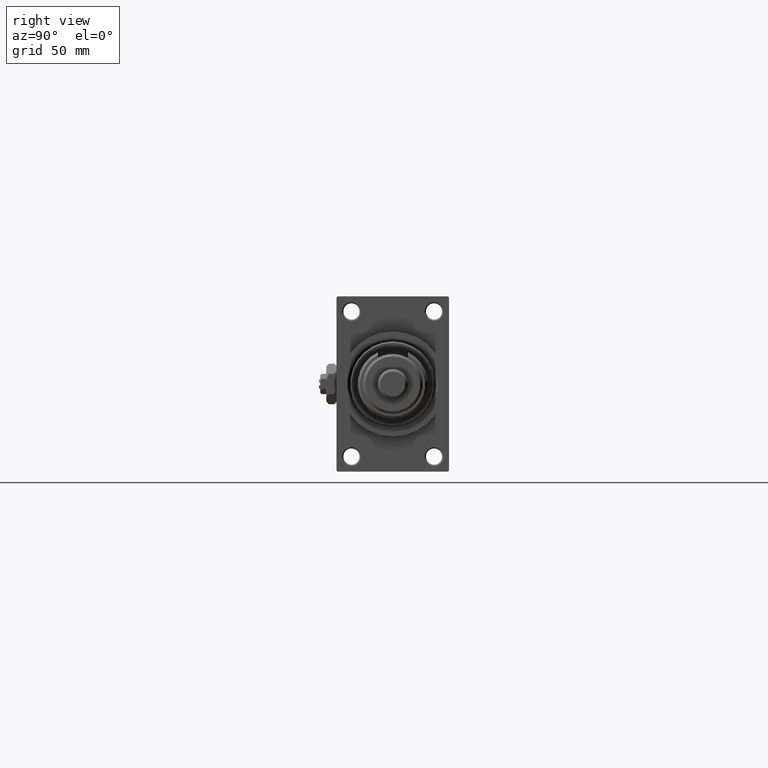
[diagram: clean part render]
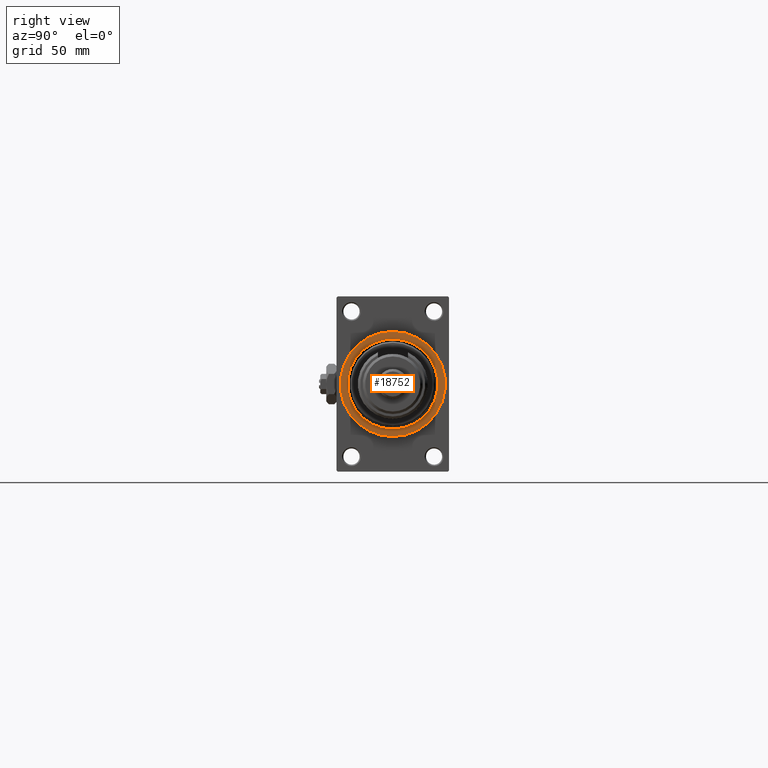
[diagram: same view with one face highlighted and labeled with its STEP entity id]
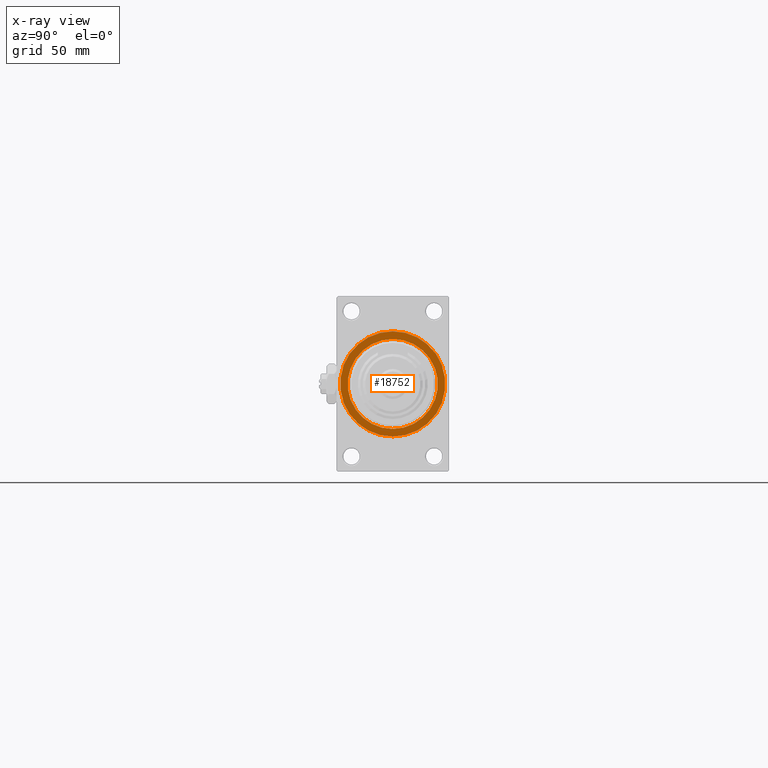
[diagram: x-ray of the same camera — body ghosted, the highlighted face saturated]
A machine part, right view. The second image highlights one B-rep face of the part: STEP entity #18752.
The next image is the same camera in x-ray: the body ghosted, the highlighted face saturated — about 0% of this face is hidden behind the body in this view.
In plain terms, the highlighted planar face has unit normal (1, 0, 0).
Its self-contained STEP definition (entity closure, byte-faithful):
#758 = CARTESIAN_POINT ( 'NONE',  ( 183.0000000000000284, 2.204364238465244894E-15, 18.00000000000007105 ) ) ;
#1882 = EDGE_LOOP ( 'NONE', ( #36307, #51190 ) ) ;
#2490 = FACE_OUTER_BOUND ( 'NONE', #1882, .T. ) ;
#2491 = AXIS2_PLACEMENT_3D ( 'NONE', #12241, #16438, #24844 ) ;
#6424 = DIRECTION ( 'NONE',  ( 0.000000000000000000, 0.000000000000000000, -1.000000000000000000 ) ) ;
#9705 = CARTESIAN_POINT ( 'NONE',  ( 183.0000000000000284, 2.571758278209441661E-15, -21.00000000000000000 ) ) ;
#11858 = AXIS2_PLACEMENT_3D ( 'NONE', #35913, #16201, #51950 ) ;
#12241 = CARTESIAN_POINT ( 'NONE',  ( 183.0000000000000284, 0.000000000000000000, 0.000000000000000000 ) ) ;
#14913 = CARTESIAN_POINT ( 'NONE',  ( 183.0000000000000284, 0.000000000000000000, 0.000000000000000000 ) ) ;
#16016 = ORIENTED_EDGE ( 'NONE', *, *, #34043, .T. ) ;
#16201 = DIRECTION ( 'NONE',  ( 1.000000000000000000, 0.000000000000000000, 0.000000000000000000 ) ) ;
#16210 = VERTEX_POINT ( 'NONE', #758 ) ;
#16438 = DIRECTION ( 'NONE',  ( -1.000000000000000000, -0.000000000000000000, -0.000000000000000000 ) ) ;
#16593 = AXIS2_PLACEMENT_3D ( 'NONE', #50813, #46605, #6424 ) ;
#18541 = CIRCLE ( 'NONE', #11858, 21.00000000000000000 ) ;
#18752 = ADVANCED_FACE ( 'NONE', ( #38187, #2490 ), #30598, .T. ) ;
#21551 = VERTEX_POINT ( 'NONE', #30192 ) ;
#22675 = CIRCLE ( 'NONE', #42806, 18.00000000000007105 ) ;
#23553 = CARTESIAN_POINT ( 'NONE',  ( 183.0000000000000284, 0.000000000000000000, -18.00000000000007105 ) ) ;
#24844 = DIRECTION ( 'NONE',  ( 0.000000000000000000, 0.000000000000000000, -1.000000000000000000 ) ) ;
#26317 = DIRECTION ( 'NONE',  ( 0.000000000000000000, 0.000000000000000000, -1.000000000000000000 ) ) ;
#26906 = EDGE_CURVE ( 'NONE', #16210, #35645, #22675, .T. ) ;
#27003 = DIRECTION ( 'NONE',  ( 0.000000000000000000, 0.000000000000000000, -1.000000000000000000 ) ) ;
#27209 = ORIENTED_EDGE ( 'NONE', *, *, #26906, .T. ) ;
#30192 = CARTESIAN_POINT ( 'NONE',  ( 183.0000000000000284, 0.000000000000000000, 21.00000000000000000 ) ) ;
#30428 = VERTEX_POINT ( 'NONE', #9705 ) ;
#30598 = PLANE ( 'NONE',  #16593 ) ;
#30948 = DIRECTION ( 'NONE',  ( -1.000000000000000000, -0.000000000000000000, -0.000000000000000000 ) ) ;
#32240 = EDGE_LOOP ( 'NONE', ( #16016, #27209 ) ) ;
#34043 = EDGE_CURVE ( 'NONE', #35645, #16210, #39377, .T. ) ;
#35612 = AXIS2_PLACEMENT_3D ( 'NONE', #37344, #46004, #26317 ) ;
#35645 = VERTEX_POINT ( 'NONE', #23553 ) ;
#35913 = CARTESIAN_POINT ( 'NONE',  ( 183.0000000000000284, 0.000000000000000000, 0.000000000000000000 ) ) ;
#36307 = ORIENTED_EDGE ( 'NONE', *, *, #40926, .T. ) ;
#37276 = CIRCLE ( 'NONE', #35612, 21.00000000000000000 ) ;
#37344 = CARTESIAN_POINT ( 'NONE',  ( 183.0000000000000284, 0.000000000000000000, 0.000000000000000000 ) ) ;
#38187 = FACE_BOUND ( 'NONE', #32240, .T. ) ;
#39377 = CIRCLE ( 'NONE', #2491, 18.00000000000007105 ) ;
#40926 = EDGE_CURVE ( 'NONE', #21551, #30428, #18541, .T. ) ;
#42806 = AXIS2_PLACEMENT_3D ( 'NONE', #14913, #30948, #27003 ) ;
#46004 = DIRECTION ( 'NONE',  ( 1.000000000000000000, 0.000000000000000000, 0.000000000000000000 ) ) ;
#46605 = DIRECTION ( 'NONE',  ( 1.000000000000000000, 0.000000000000000000, 0.000000000000000000 ) ) ;
#50813 = CARTESIAN_POINT ( 'NONE',  ( 183.0000000000000284, 0.000000000000000000, 0.000000000000000000 ) ) ;
#51190 = ORIENTED_EDGE ( 'NONE', *, *, #51852, .T. ) ;
#51852 = EDGE_CURVE ( 'NONE', #30428, #21551, #37276, .T. ) ;
#51950 = DIRECTION ( 'NONE',  ( 0.000000000000000000, 0.000000000000000000, -1.000000000000000000 ) ) ;